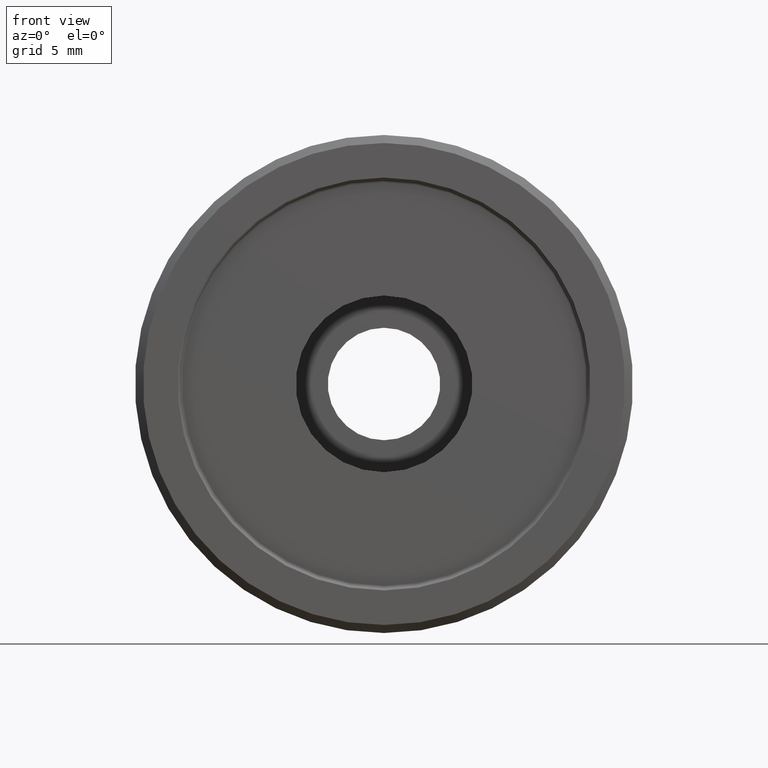
[diagram: clean part render]
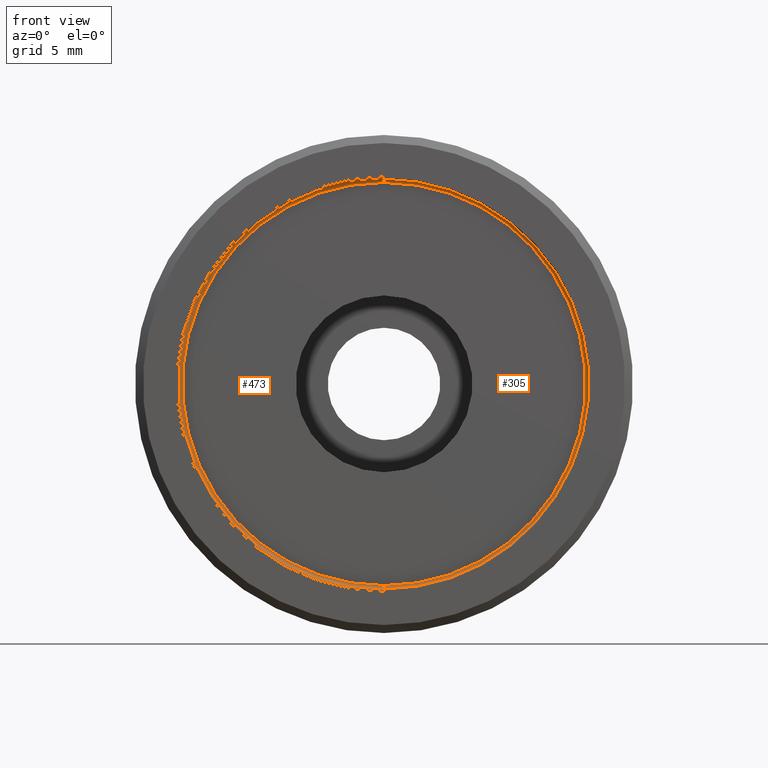
[diagram: same view with one multi-face feature highlighted, each face labeled with its STEP entity id]
A machine part, front view. The highlighted faces form ONE feature: a constant-radius fillet chain: 2 tangent blend faces with common blend radius 0.2 mm. The faces share edges in the B-rep.
Their STEP definitions:
[1] entity #305 (Torus):
#13 = ORIENTED_EDGE ( 'NONE', *, *, #334, .T. ) ;
#42 = DIRECTION ( 'NONE',  ( 1.000000000000000000, 0.0000000000000000000, 1.224646799147353200E-016 ) ) ;
#47 = DIRECTION ( 'NONE',  ( 1.224646799147353200E-016, 0.0000000000000000000, -1.000000000000000000 ) ) ;
#122 = DIRECTION ( 'NONE',  ( -0.0000000000000000000, 1.000000000000000000, -0.0000000000000000000 ) ) ;
#145 = AXIS2_PLACEMENT_3D ( 'NONE', #855, #181, #789 ) ;
#148 = CIRCLE ( 'NONE', #607, 0.2000000000000005100 ) ;
#174 = CARTESIAN_POINT ( 'NONE',  ( 1.549178200921401800E-015, 0.5000000000000004400, -12.54999999999999900 ) ) ;
#181 = DIRECTION ( 'NONE',  ( -0.0000000000000000000, 1.000000000000000000, -0.0000000000000000000 ) ) ;
#185 = EDGE_LOOP ( 'NONE', ( #384, #202, #746, #13 ) ) ;
#194 = DIRECTION ( 'NONE',  ( -0.0000000000000000000, 1.000000000000000000, -0.0000000000000000000 ) ) ;
#200 = DIRECTION ( 'NONE',  ( 0.0000000000000000000, 0.0000000000000000000, 1.000000000000000000 ) ) ;
#202 = ORIENTED_EDGE ( 'NONE', *, *, #452, .F. ) ;
#217 = VERTEX_POINT ( 'NONE', #174 ) ;
#218 = CIRCLE ( 'NONE', #450, 0.2000000000000005100 ) ;
#271 = EDGE_CURVE ( 'NONE', #279, #217, #148, .T. ) ;
#279 = VERTEX_POINT ( 'NONE', #794 ) ;
#285 = CARTESIAN_POINT ( 'NONE',  ( 0.0000000000000000000, 0.5000000000000004400, 12.54999999999999900 ) ) ;
#305 = ADVANCED_FACE ( 'NONE', ( #850 ), #333, .F. ) ;
#333 = TOROIDAL_SURFACE ( 'NONE', #145, 12.54999999999999900, 0.2000000000000011200 ) ;
#334 = EDGE_CURVE ( 'NONE', #583, #217, #468, .T. ) ;
#384 = ORIENTED_EDGE ( 'NONE', *, *, #271, .F. ) ;
#406 = AXIS2_PLACEMENT_3D ( 'NONE', #869, #194, #200 ) ;
#450 = AXIS2_PLACEMENT_3D ( 'NONE', #558, #759, #760 ) ;
#452 = EDGE_CURVE ( 'NONE', #531, #279, #684, .T. ) ;
#457 = CARTESIAN_POINT ( 'NONE',  ( 1.536931732929928000E-015, 0.3000000000000000400, -12.54999999999999900 ) ) ;
#468 = CIRCLE ( 'NONE', #406, 12.54999999999999900 ) ;
#475 = CARTESIAN_POINT ( 'NONE',  ( 0.0000000000000000000, 0.2999999999999999300, 12.75000000000000200 ) ) ;
#531 = VERTEX_POINT ( 'NONE', #475 ) ;
#558 = CARTESIAN_POINT ( 'NONE',  ( 0.0000000000000000000, 0.3000000000000000400, 12.54999999999999900 ) ) ;
#583 = VERTEX_POINT ( 'NONE', #285 ) ;
#601 = CARTESIAN_POINT ( 'NONE',  ( 0.0000000000000000000, 0.2999999999999999300, 0.0000000000000000000 ) ) ;
#607 = AXIS2_PLACEMENT_3D ( 'NONE', #457, #42, #47 ) ;
#684 = CIRCLE ( 'NONE', #742, 12.75000000000000200 ) ;
#742 = AXIS2_PLACEMENT_3D ( 'NONE', #601, #122, #805 ) ;
#746 = ORIENTED_EDGE ( 'NONE', *, *, #863, .T. ) ;
#759 = DIRECTION ( 'NONE',  ( -1.000000000000000000, 0.0000000000000000000, 0.0000000000000000000 ) ) ;
#760 = DIRECTION ( 'NONE',  ( 0.0000000000000000000, 0.0000000000000000000, 1.000000000000000000 ) ) ;
#789 = DIRECTION ( 'NONE',  ( 0.0000000000000000000, 0.0000000000000000000, 1.000000000000000000 ) ) ;
#794 = CARTESIAN_POINT ( 'NONE',  ( 1.561424668912875300E-015, 0.2999999999999999300, -12.75000000000000200 ) ) ;
#805 = DIRECTION ( 'NONE',  ( 0.0000000000000000000, 0.0000000000000000000, 1.000000000000000000 ) ) ;
#850 = FACE_OUTER_BOUND ( 'NONE', #185, .T. ) ;
#855 = CARTESIAN_POINT ( 'NONE',  ( 0.0000000000000000000, 0.3000000000000000400, 0.0000000000000000000 ) ) ;
#863 = EDGE_CURVE ( 'NONE', #531, #583, #218, .T. ) ;
#869 = CARTESIAN_POINT ( 'NONE',  ( 0.0000000000000000000, 0.5000000000000004400, 0.0000000000000000000 ) ) ;
[2] entity #473 (Torus):
#10 = CARTESIAN_POINT ( 'NONE',  ( 0.0000000000000000000, 0.2999999999999999300, 0.0000000000000000000 ) ) ;
#42 = DIRECTION ( 'NONE',  ( 1.000000000000000000, 0.0000000000000000000, 1.224646799147353200E-016 ) ) ;
#47 = DIRECTION ( 'NONE',  ( 1.224646799147353200E-016, 0.0000000000000000000, -1.000000000000000000 ) ) ;
#57 = CIRCLE ( 'NONE', #103, 12.54999999999999900 ) ;
#76 = DIRECTION ( 'NONE',  ( 0.0000000000000000000, 0.0000000000000000000, 1.000000000000000000 ) ) ;
#103 = AXIS2_PLACEMENT_3D ( 'NONE', #573, #243, #780 ) ;
#128 = DIRECTION ( 'NONE',  ( 0.0000000000000000000, 0.0000000000000000000, 1.000000000000000000 ) ) ;
#135 = EDGE_CURVE ( 'NONE', #217, #583, #57, .T. ) ;
#148 = CIRCLE ( 'NONE', #607, 0.2000000000000005100 ) ;
#174 = CARTESIAN_POINT ( 'NONE',  ( 1.549178200921401800E-015, 0.5000000000000004400, -12.54999999999999900 ) ) ;
#217 = VERTEX_POINT ( 'NONE', #174 ) ;
#218 = CIRCLE ( 'NONE', #450, 0.2000000000000005100 ) ;
#243 = DIRECTION ( 'NONE',  ( -0.0000000000000000000, 1.000000000000000000, -0.0000000000000000000 ) ) ;
#271 = EDGE_CURVE ( 'NONE', #279, #217, #148, .T. ) ;
#279 = VERTEX_POINT ( 'NONE', #794 ) ;
#285 = CARTESIAN_POINT ( 'NONE',  ( 0.0000000000000000000, 0.5000000000000004400, 12.54999999999999900 ) ) ;
#433 = ORIENTED_EDGE ( 'NONE', *, *, #863, .F. ) ;
#450 = AXIS2_PLACEMENT_3D ( 'NONE', #558, #759, #760 ) ;
#457 = CARTESIAN_POINT ( 'NONE',  ( 1.536931732929928000E-015, 0.3000000000000000400, -12.54999999999999900 ) ) ;
#473 = ADVANCED_FACE ( 'NONE', ( #868 ), #516, .F. ) ;
#475 = CARTESIAN_POINT ( 'NONE',  ( 0.0000000000000000000, 0.2999999999999999300, 12.75000000000000200 ) ) ;
#516 = TOROIDAL_SURFACE ( 'NONE', #873, 12.54999999999999900, 0.2000000000000011200 ) ;
#530 = DIRECTION ( 'NONE',  ( -0.0000000000000000000, 1.000000000000000000, -0.0000000000000000000 ) ) ;
#531 = VERTEX_POINT ( 'NONE', #475 ) ;
#558 = CARTESIAN_POINT ( 'NONE',  ( 0.0000000000000000000, 0.3000000000000000400, 12.54999999999999900 ) ) ;
#571 = AXIS2_PLACEMENT_3D ( 'NONE', #10, #679, #76 ) ;
#573 = CARTESIAN_POINT ( 'NONE',  ( 0.0000000000000000000, 0.5000000000000004400, 0.0000000000000000000 ) ) ;
#577 = EDGE_CURVE ( 'NONE', #279, #531, #642, .T. ) ;
#581 = ORIENTED_EDGE ( 'NONE', *, *, #135, .T. ) ;
#583 = VERTEX_POINT ( 'NONE', #285 ) ;
#607 = AXIS2_PLACEMENT_3D ( 'NONE', #457, #42, #47 ) ;
#621 = ORIENTED_EDGE ( 'NONE', *, *, #577, .F. ) ;
#642 = CIRCLE ( 'NONE', #571, 12.75000000000000200 ) ;
#679 = DIRECTION ( 'NONE',  ( -0.0000000000000000000, 1.000000000000000000, -0.0000000000000000000 ) ) ;
#722 = ORIENTED_EDGE ( 'NONE', *, *, #271, .T. ) ;
#730 = EDGE_LOOP ( 'NONE', ( #621, #722, #581, #433 ) ) ;
#759 = DIRECTION ( 'NONE',  ( -1.000000000000000000, 0.0000000000000000000, 0.0000000000000000000 ) ) ;
#760 = DIRECTION ( 'NONE',  ( 0.0000000000000000000, 0.0000000000000000000, 1.000000000000000000 ) ) ;
#780 = DIRECTION ( 'NONE',  ( 0.0000000000000000000, 0.0000000000000000000, 1.000000000000000000 ) ) ;
#794 = CARTESIAN_POINT ( 'NONE',  ( 1.561424668912875300E-015, 0.2999999999999999300, -12.75000000000000200 ) ) ;
#807 = CARTESIAN_POINT ( 'NONE',  ( 0.0000000000000000000, 0.3000000000000000400, 0.0000000000000000000 ) ) ;
#863 = EDGE_CURVE ( 'NONE', #531, #583, #218, .T. ) ;
#868 = FACE_OUTER_BOUND ( 'NONE', #730, .T. ) ;
#873 = AXIS2_PLACEMENT_3D ( 'NONE', #807, #530, #128 ) ;